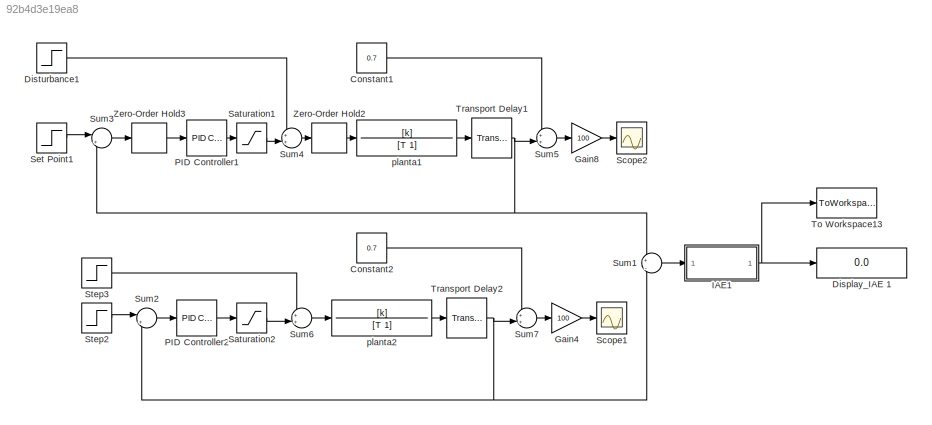
MODEL slx_92b4d3e19ea8
KIND model
CONFIG AbsTol = auto
CONFIG EnableMultiTasking = off
CONFIG FixedStep = auto
CONFIG MaxStep = auto
CONFIG MinStep = auto
CONFIG RelTol = 1e-3
CONFIG SampleTimeConstraint = Unconstrained
CONFIG Solver = VariableStepAuto
CONFIG SolverName = VariableStepAuto
CONFIG StartTime = 0.0
CONFIG StopTime = 150
BLOCK [Constant] Constant1
  Value = 0.7
BLOCK [Constant] Constant2
  Value = 0.7
BLOCK [Display] Display_IAE 1
  Decimation = 1
  Ports = [1]
BLOCK [Step] Disturbance1
  After = -0.05
  SampleTime = 0
  Time = 30
BLOCK [Gain] Gain4
  Gain = 100
  OutDataTypeStr = Inherit: Inherit via internal rule
  ParamDataTypeStr = Inherit: Inherit via internal rule
  SaturateOnIntegerOverflow = off
BLOCK [Gain] Gain8
  Gain = 100
  OutDataTypeStr = Inherit: Inherit via internal rule
  ParamDataTypeStr = Inherit: Inherit via internal rule
  SaturateOnIntegerOverflow = off
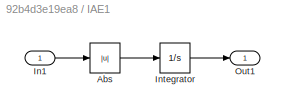
BLOCK [SubSystem] IAE1
  Ports = [1, 1]
  RequestExecContextInheritance = off
BLOCK [Abs] IAE1/Abs
  SaturateOnIntegerOverflow = off
BLOCK [Inport] IAE1/In1
  IconDisplay = Port number
BLOCK [Integrator] IAE1/Integrator
  Ports = [1, 1]
BLOCK [Outport] IAE1/Out1
  IconDisplay = Port number
BLOCK [Reference] PID Controller1  REF=simulink/Continuous/PID Controller
  Ports = [1, 1]
  SourceBlock = simulink/Continuous/PID Controller
  SourceProductBaseCode = SL
  SourceProductName = Simulink
  SourceType = PID 1dof
BLOCK [Reference] PID Controller2  REF=simulink/Continuous/PID Controller
  Ports = [1, 1]
  SourceBlock = simulink/Continuous/PID Controller
  SourceProductBaseCode = SL
  SourceProductName = Simulink
  SourceType = PID 1dof
BLOCK [Saturate] Saturation1
  InputPortMap = u0
  LowerLimit = -0.1
  Ports = [1, 1]
  UpperLimit = 1
BLOCK [Saturate] Saturation2
  InputPortMap = u0
  LowerLimit = -0.1
  Ports = [1, 1]
  UpperLimit = 1
BLOCK [Scope] Scope1
  Floating = off
  NumInputPorts = 1
  Ports = [1]
  ScopeSpecificationString = Simulink.scopes.TimeScopeBlockCfg('CurrentConfiguration', extmgr.ConfigurationSet(extmgr.Configuration('Core','General UI',true),extmgr.Configuration('Core','Source UI',true),extmgr.Configuration('Sources','WiredSimulink',true,'DataLoggingVariableName','ScopeData2'),extmgr.Configuration('Visuals','Time Domain',true,'SerializedDisplays',{struct('MinYLimReal','68.75009','MaxYLimReal','81.24915','YLa...<+1399ch>
BLOCK [Scope] Scope2
  Floating = off
  NumInputPorts = 1
  Ports = [1]
  ScopeSpecificationString = Simulink.scopes.TimeScopeBlockCfg('CurrentConfiguration', extmgr.ConfigurationSet(extmgr.Configuration('Core','General UI',true),extmgr.Configuration('Core','Source UI',true),extmgr.Configuration('Sources','WiredSimulink',true,'DataLoggingVariableName','ScopeData1'),extmgr.Configuration('Visuals','Time Domain',true,'SerializedDisplays',{struct('MinYLimReal','68.62688','MaxYLimReal','82.35808','YLa...<+1399ch>
BLOCK [Step] Set Point1
  After = 0.1
  SampleTime = 0
  Time = 0
BLOCK [Step] Step2
  After = 0.1
  SampleTime = 0
  Time = 0
BLOCK [Step] Step3
  After = -0.05
  SampleTime = 0
  Time = 30
BLOCK [Sum] Sum1
  IconShape = round
  InputSameDT = off
  Inputs = +|-
  OutDataTypeStr = Inherit: Inherit via internal rule
  Ports = [2, 1]
  SaturateOnIntegerOverflow = off
BLOCK [Sum] Sum2
  IconShape = round
  InputSameDT = off
  Inputs = |+-
  OutDataTypeStr = Inherit: Inherit via internal rule
  Ports = [2, 1]
  SaturateOnIntegerOverflow = off
BLOCK [Sum] Sum3
  IconShape = round
  InputSameDT = off
  Inputs = |+-
  OutDataTypeStr = Inherit: Inherit via internal rule
  Ports = [2, 1]
  SaturateOnIntegerOverflow = off
BLOCK [Sum] Sum4
  IconShape = round
  InputSameDT = off
  Inputs = ++|
  OutDataTypeStr = Inherit: Inherit via internal rule
  Ports = [2, 1]
  SaturateOnIntegerOverflow = off
BLOCK [Sum] Sum5
  IconShape = round
  InputSameDT = off
  Inputs = ++|
  OutDataTypeStr = Inherit: Inherit via internal rule
  Ports = [2, 1]
  SaturateOnIntegerOverflow = off
BLOCK [Sum] Sum6
  IconShape = round
  InputSameDT = off
  Inputs = ++|
  OutDataTypeStr = Inherit: Inherit via internal rule
  Ports = [2, 1]
  SaturateOnIntegerOverflow = off
BLOCK [Sum] Sum7
  IconShape = round
  InputSameDT = off
  Inputs = ++|
  OutDataTypeStr = Inherit: Inherit via internal rule
  Ports = [2, 1]
  SaturateOnIntegerOverflow = off
BLOCK [ToWorkspace] To Workspace13
  FixptAsFi = on
  MaxDataPoints = inf
  Ports = [1]
  SampleTime = Ts
  Save2DSignal = 3-D array (concatenate along third dimension)
  SaveFormat = Timeseries
  VariableName = IAE_Elegido
BLOCK [TransportDelay] Transport Delay1
  DelayTime = L
  Ports = [1, 1]
BLOCK [TransportDelay] Transport Delay2
  DelayTime = L
  Ports = [1, 1]
BLOCK [ZeroOrderHold] Zero-Order Hold2
  SampleTime = Ts
BLOCK [ZeroOrderHold] Zero-Order Hold3
  SampleTime = Ts
BLOCK [TransferFcn] planta1
  ContinuousStateAttributes = 'planta'
  Denominator = [T 1]
  Numerator = [k]
BLOCK [TransferFcn] planta2
  ContinuousStateAttributes = 'planta'
  Denominator = [T 1]
  Numerator = [k]
LINE Constant1:1 -> Sum5:1
LINE Constant2:1 -> Sum7:1
LINE Disturbance1:1 -> Sum4:1
LINE Gain4:1 -> Scope1:1
LINE Gain8:1 -> Scope2:1
LINE IAE1/Abs:1 -> IAE1/Integrator:1
LINE IAE1/In1:1 -> IAE1/Abs:1
LINE IAE1/Integrator:1 -> IAE1/Out1:1
NET IAE1:1 -> Display_IAE 1:1, To Workspace13:1
LINE PID Controller1:1 -> Saturation1:1
LINE PID Controller2:1 -> Saturation2:1
LINE Saturation1:1 -> Sum4:2
LINE Saturation2:1 -> Sum6:2
LINE Set Point1:1 -> Sum3:1
LINE Step2:1 -> Sum2:1
LINE Step3:1 -> Sum6:1
LINE Sum1:1 -> IAE1:1
LINE Sum2:1 -> PID Controller2:1
LINE Sum3:1 -> Zero-Order Hold3:1
LINE Sum4:1 -> Zero-Order Hold2:1
LINE Sum5:1 -> Gain8:1
LINE Sum6:1 -> planta2:1
LINE Sum7:1 -> Gain4:1
NET Transport Delay1:1 -> Sum1:1, Sum3:2, Sum5:2
NET Transport Delay2:1 -> Sum1:2, Sum2:2, Sum7:2
LINE Zero-Order Hold2:1 -> planta1:1
LINE Zero-Order Hold3:1 -> PID Controller1:1
LINE planta1:1 -> Transport Delay1:1
LINE planta2:1 -> Transport Delay2:1
note: NET lines group one-source signal fan-out (src -> all destinations, sorted); 1:1 wires keep LINE
